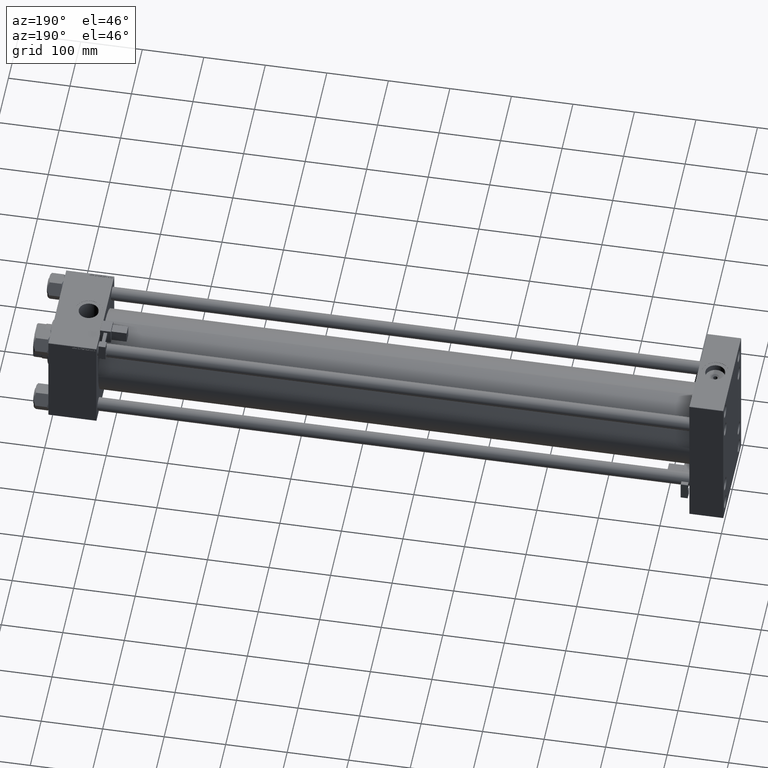
[diagram: clean part render]
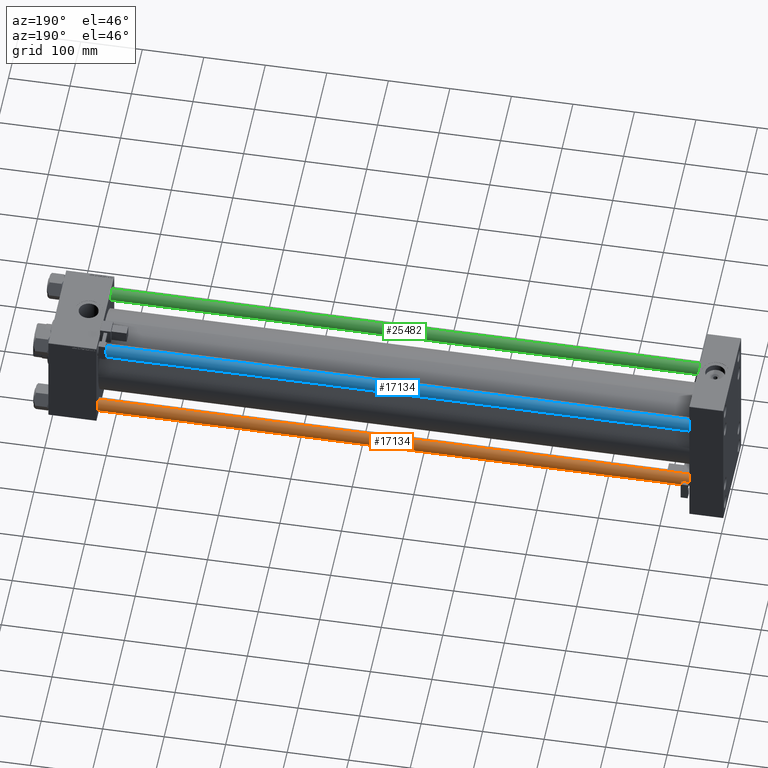
[diagram: same view with three faces highlighted in distinct colors, each labeled with its STEP entity id]
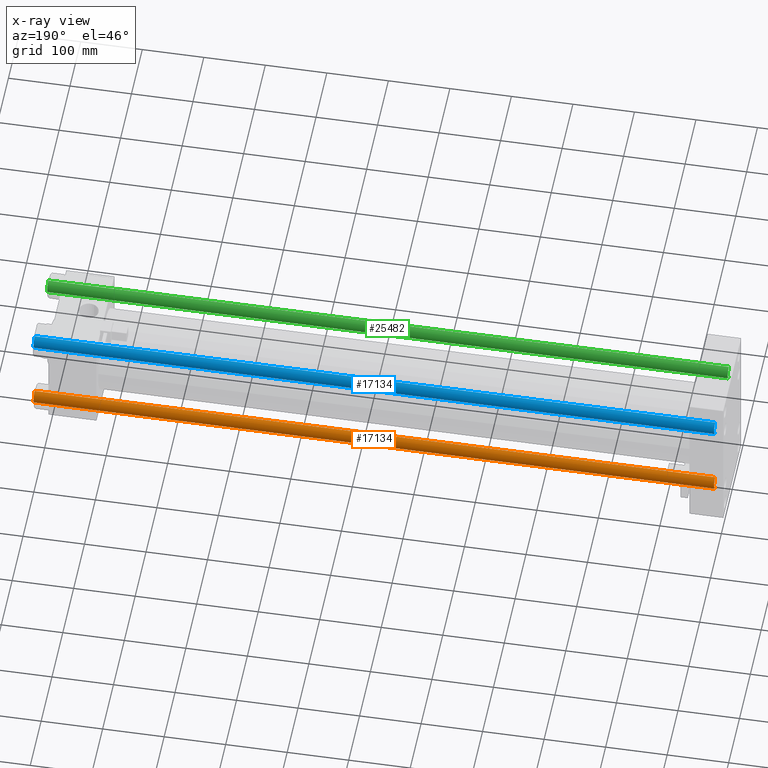
[diagram: x-ray of the same camera — body ghosted, the three highlighted faces saturated]
A machine part, auxiliary view with three faces highlighted in distinct colors.
The next image is the same camera in x-ray (body ghosted, the three faces saturated) — at least one of them is partly hidden behind the body in this view.
Their STEP definitions:

[orange] entity #17134 — the highlighted cylindrical surface (edge-blend (fillet) strip) has radius 11 mm, axis along (-1, 0, 0).
#1936 = LINE ( 'NONE', #14180, #21247 ) ;
#2006 = LINE ( 'NONE', #47049, #18837 ) ;
#2665 = AXIS2_PLACEMENT_3D ( 'NONE', #25410, #41418, #45431 ) ;
#3874 = VERTEX_POINT ( 'NONE', #18057 ) ;
#4763 = VERTEX_POINT ( 'NONE', #9291 ) ;
#5946 = CARTESIAN_POINT ( 'NONE',  ( 0.000000000000000000, 0.000000000000000000, 1107.000000000000000 ) ) ;
#9291 = CARTESIAN_POINT ( 'NONE',  ( -11.00000000000000000, 0.000000000000000000, 0.5000000000001669775 ) ) ;
#10186 = DIRECTION ( 'NONE',  ( -0.000000000000000000, -0.000000000000000000, -1.000000000000000000 ) ) ;
#10555 = EDGE_CURVE ( 'NONE', #40219, #4763, #2006, .T. ) ;
#10556 = DIRECTION ( 'NONE',  ( 0.000000000000000000, 0.000000000000000000, -1.000000000000000000 ) ) ;
#11285 = ORIENTED_EDGE ( 'NONE', *, *, #47826, .F. ) ;
#12098 = EDGE_LOOP ( 'NONE', ( #11285, #29632, #24367, #24265 ) ) ;
#14180 = CARTESIAN_POINT ( 'NONE',  ( 11.00000000000000000, 1.347111479062088405E-15, 1107.000000000000000 ) ) ;
#14769 = DIRECTION ( 'NONE',  ( -0.000000000000000000, -0.000000000000000000, -1.000000000000000000 ) ) ;
#14805 = DIRECTION ( 'NONE',  ( 1.000000000000000000, 0.000000000000000000, 0.000000000000000000 ) ) ;
#16754 = CARTESIAN_POINT ( 'NONE',  ( 11.00000000000000000, 1.347111479062088405E-15, 1106.500000000000000 ) ) ;
#17134 = ADVANCED_FACE ( 'NONE', ( #41701 ), #45965, .T. ) ;
#18057 = CARTESIAN_POINT ( 'NONE',  ( 11.00000000000000000, 1.347111479062088405E-15, 0.5000000000001669775 ) ) ;
#18837 = VECTOR ( 'NONE', #14769, 1000.000000000000000 ) ;
#21247 = VECTOR ( 'NONE', #10186, 1000.000000000000000 ) ;
#24265 = ORIENTED_EDGE ( 'NONE', *, *, #42897, .T. ) ;
#24367 = ORIENTED_EDGE ( 'NONE', *, *, #10555, .T. ) ;
#25410 = CARTESIAN_POINT ( 'NONE',  ( 0.000000000000000000, 0.000000000000000000, 0.5000000000001669775 ) ) ;
#26381 = VERTEX_POINT ( 'NONE', #16754 ) ;
#26481 = CIRCLE ( 'NONE', #2665, 11.00000000000000000 ) ;
#26490 = DIRECTION ( 'NONE',  ( -1.000000000000000000, 0.000000000000000000, 0.000000000000000000 ) ) ;
#29632 = ORIENTED_EDGE ( 'NONE', *, *, #50556, .T. ) ;
#34750 = DIRECTION ( 'NONE',  ( -0.000000000000000000, -0.000000000000000000, -1.000000000000000000 ) ) ;
#35010 = AXIS2_PLACEMENT_3D ( 'NONE', #47086, #10556, #14805 ) ;
#39056 = CARTESIAN_POINT ( 'NONE',  ( -11.00000000000000000, 0.000000000000000000, 1106.500000000000000 ) ) ;
#40219 = VERTEX_POINT ( 'NONE', #39056 ) ;
#41418 = DIRECTION ( 'NONE',  ( -0.000000000000000000, -0.000000000000000000, 1.000000000000000000 ) ) ;
#41701 = FACE_OUTER_BOUND ( 'NONE', #12098, .T. ) ;
#42897 = EDGE_CURVE ( 'NONE', #4763, #3874, #26481, .T. ) ;
#45431 = DIRECTION ( 'NONE',  ( 1.000000000000000000, 0.000000000000000000, 0.000000000000000000 ) ) ;
#45965 = CYLINDRICAL_SURFACE ( 'NONE', #46347, 11.00000000000000000 ) ;
#46347 = AXIS2_PLACEMENT_3D ( 'NONE', #5946, #34750, #26490 ) ;
#47049 = CARTESIAN_POINT ( 'NONE',  ( -11.00000000000000000, 0.000000000000000000, 1107.000000000000000 ) ) ;
#47086 = CARTESIAN_POINT ( 'NONE',  ( 0.000000000000000000, 0.000000000000000000, 1106.500000000000000 ) ) ;
#47826 = EDGE_CURVE ( 'NONE', #26381, #3874, #1936, .T. ) ;
#50359 = CIRCLE ( 'NONE', #35010, 11.00000000000000000 ) ;
#50556 = EDGE_CURVE ( 'NONE', #26381, #40219, #50359, .T. ) ;

[blue] entity #17134 — the highlighted cylindrical surface (edge-blend (fillet) strip) has radius 11 mm, axis along (1, 0, 0).
#1936 = LINE ( 'NONE', #14180, #21247 ) ;
#2006 = LINE ( 'NONE', #47049, #18837 ) ;
#2665 = AXIS2_PLACEMENT_3D ( 'NONE', #25410, #41418, #45431 ) ;
#3874 = VERTEX_POINT ( 'NONE', #18057 ) ;
#4763 = VERTEX_POINT ( 'NONE', #9291 ) ;
#5946 = CARTESIAN_POINT ( 'NONE',  ( 0.000000000000000000, 0.000000000000000000, 1107.000000000000000 ) ) ;
#9291 = CARTESIAN_POINT ( 'NONE',  ( -11.00000000000000000, 0.000000000000000000, 0.5000000000001669775 ) ) ;
#10186 = DIRECTION ( 'NONE',  ( -0.000000000000000000, -0.000000000000000000, -1.000000000000000000 ) ) ;
#10555 = EDGE_CURVE ( 'NONE', #40219, #4763, #2006, .T. ) ;
#10556 = DIRECTION ( 'NONE',  ( 0.000000000000000000, 0.000000000000000000, -1.000000000000000000 ) ) ;
#11285 = ORIENTED_EDGE ( 'NONE', *, *, #47826, .F. ) ;
#12098 = EDGE_LOOP ( 'NONE', ( #11285, #29632, #24367, #24265 ) ) ;
#14180 = CARTESIAN_POINT ( 'NONE',  ( 11.00000000000000000, 1.347111479062088405E-15, 1107.000000000000000 ) ) ;
#14769 = DIRECTION ( 'NONE',  ( -0.000000000000000000, -0.000000000000000000, -1.000000000000000000 ) ) ;
#14805 = DIRECTION ( 'NONE',  ( 1.000000000000000000, 0.000000000000000000, 0.000000000000000000 ) ) ;
#16754 = CARTESIAN_POINT ( 'NONE',  ( 11.00000000000000000, 1.347111479062088405E-15, 1106.500000000000000 ) ) ;
#17134 = ADVANCED_FACE ( 'NONE', ( #41701 ), #45965, .T. ) ;
#18057 = CARTESIAN_POINT ( 'NONE',  ( 11.00000000000000000, 1.347111479062088405E-15, 0.5000000000001669775 ) ) ;
#18837 = VECTOR ( 'NONE', #14769, 1000.000000000000000 ) ;
#21247 = VECTOR ( 'NONE', #10186, 1000.000000000000000 ) ;
#24265 = ORIENTED_EDGE ( 'NONE', *, *, #42897, .T. ) ;
#24367 = ORIENTED_EDGE ( 'NONE', *, *, #10555, .T. ) ;
#25410 = CARTESIAN_POINT ( 'NONE',  ( 0.000000000000000000, 0.000000000000000000, 0.5000000000001669775 ) ) ;
#26381 = VERTEX_POINT ( 'NONE', #16754 ) ;
#26481 = CIRCLE ( 'NONE', #2665, 11.00000000000000000 ) ;
#26490 = DIRECTION ( 'NONE',  ( -1.000000000000000000, 0.000000000000000000, 0.000000000000000000 ) ) ;
#29632 = ORIENTED_EDGE ( 'NONE', *, *, #50556, .T. ) ;
#34750 = DIRECTION ( 'NONE',  ( -0.000000000000000000, -0.000000000000000000, -1.000000000000000000 ) ) ;
#35010 = AXIS2_PLACEMENT_3D ( 'NONE', #47086, #10556, #14805 ) ;
#39056 = CARTESIAN_POINT ( 'NONE',  ( -11.00000000000000000, 0.000000000000000000, 1106.500000000000000 ) ) ;
#40219 = VERTEX_POINT ( 'NONE', #39056 ) ;
#41418 = DIRECTION ( 'NONE',  ( -0.000000000000000000, -0.000000000000000000, 1.000000000000000000 ) ) ;
#41701 = FACE_OUTER_BOUND ( 'NONE', #12098, .T. ) ;
#42897 = EDGE_CURVE ( 'NONE', #4763, #3874, #26481, .T. ) ;
#45431 = DIRECTION ( 'NONE',  ( 1.000000000000000000, 0.000000000000000000, 0.000000000000000000 ) ) ;
#45965 = CYLINDRICAL_SURFACE ( 'NONE', #46347, 11.00000000000000000 ) ;
#46347 = AXIS2_PLACEMENT_3D ( 'NONE', #5946, #34750, #26490 ) ;
#47049 = CARTESIAN_POINT ( 'NONE',  ( -11.00000000000000000, 0.000000000000000000, 1107.000000000000000 ) ) ;
#47086 = CARTESIAN_POINT ( 'NONE',  ( 0.000000000000000000, 0.000000000000000000, 1106.500000000000000 ) ) ;
#47826 = EDGE_CURVE ( 'NONE', #26381, #3874, #1936, .T. ) ;
#50359 = CIRCLE ( 'NONE', #35010, 11.00000000000000000 ) ;
#50556 = EDGE_CURVE ( 'NONE', #26381, #40219, #50359, .T. ) ;

[green] entity #25482 — the highlighted cylindrical surface (edge-blend (fillet) strip) has radius 11 mm, axis along (-1, 0, -0).
#1936 = LINE ( 'NONE', #14180, #21247 ) ;
#2006 = LINE ( 'NONE', #47049, #18837 ) ;
#3874 = VERTEX_POINT ( 'NONE', #18057 ) ;
#4763 = VERTEX_POINT ( 'NONE', #9291 ) ;
#9291 = CARTESIAN_POINT ( 'NONE',  ( -11.00000000000000000, 0.000000000000000000, 0.5000000000001669775 ) ) ;
#10186 = DIRECTION ( 'NONE',  ( -0.000000000000000000, -0.000000000000000000, -1.000000000000000000 ) ) ;
#10555 = EDGE_CURVE ( 'NONE', #40219, #4763, #2006, .T. ) ;
#10970 = ORIENTED_EDGE ( 'NONE', *, *, #10555, .F. ) ;
#13729 = CIRCLE ( 'NONE', #32503, 11.00000000000000000 ) ;
#13957 = CARTESIAN_POINT ( 'NONE',  ( 0.000000000000000000, 0.000000000000000000, 0.5000000000001669775 ) ) ;
#14180 = CARTESIAN_POINT ( 'NONE',  ( 11.00000000000000000, 1.347111479062088405E-15, 1107.000000000000000 ) ) ;
#14769 = DIRECTION ( 'NONE',  ( -0.000000000000000000, -0.000000000000000000, -1.000000000000000000 ) ) ;
#15227 = CARTESIAN_POINT ( 'NONE',  ( 0.000000000000000000, 0.000000000000000000, 1106.500000000000000 ) ) ;
#15759 = EDGE_CURVE ( 'NONE', #3874, #4763, #34398, .T. ) ;
#16486 = DIRECTION ( 'NONE',  ( -0.000000000000000000, -0.000000000000000000, -1.000000000000000000 ) ) ;
#16754 = CARTESIAN_POINT ( 'NONE',  ( 11.00000000000000000, 1.347111479062088405E-15, 1106.500000000000000 ) ) ;
#18057 = CARTESIAN_POINT ( 'NONE',  ( 11.00000000000000000, 1.347111479062088405E-15, 0.5000000000001669775 ) ) ;
#18837 = VECTOR ( 'NONE', #14769, 1000.000000000000000 ) ;
#21247 = VECTOR ( 'NONE', #10186, 1000.000000000000000 ) ;
#21282 = FACE_OUTER_BOUND ( 'NONE', #21745, .T. ) ;
#21745 = EDGE_LOOP ( 'NONE', ( #40720, #50989, #50859, #10970 ) ) ;
#23297 = AXIS2_PLACEMENT_3D ( 'NONE', #13957, #41966, #50501 ) ;
#24502 = CYLINDRICAL_SURFACE ( 'NONE', #29387, 11.00000000000000000 ) ;
#25301 = DIRECTION ( 'NONE',  ( -1.000000000000000000, 0.000000000000000000, 0.000000000000000000 ) ) ;
#25482 = ADVANCED_FACE ( 'NONE', ( #21282 ), #24502, .T. ) ;
#26381 = VERTEX_POINT ( 'NONE', #16754 ) ;
#29387 = AXIS2_PLACEMENT_3D ( 'NONE', #32521, #16486, #25301 ) ;
#32503 = AXIS2_PLACEMENT_3D ( 'NONE', #15227, #47517, #43524 ) ;
#32521 = CARTESIAN_POINT ( 'NONE',  ( 0.000000000000000000, 0.000000000000000000, 1107.000000000000000 ) ) ;
#34398 = CIRCLE ( 'NONE', #23297, 11.00000000000000000 ) ;
#39056 = CARTESIAN_POINT ( 'NONE',  ( -11.00000000000000000, 0.000000000000000000, 1106.500000000000000 ) ) ;
#40219 = VERTEX_POINT ( 'NONE', #39056 ) ;
#40720 = ORIENTED_EDGE ( 'NONE', *, *, #43068, .T. ) ;
#41966 = DIRECTION ( 'NONE',  ( -0.000000000000000000, -0.000000000000000000, 1.000000000000000000 ) ) ;
#43068 = EDGE_CURVE ( 'NONE', #40219, #26381, #13729, .T. ) ;
#43524 = DIRECTION ( 'NONE',  ( 1.000000000000000000, 0.000000000000000000, 0.000000000000000000 ) ) ;
#47049 = CARTESIAN_POINT ( 'NONE',  ( -11.00000000000000000, 0.000000000000000000, 1107.000000000000000 ) ) ;
#47517 = DIRECTION ( 'NONE',  ( 0.000000000000000000, 0.000000000000000000, -1.000000000000000000 ) ) ;
#47826 = EDGE_CURVE ( 'NONE', #26381, #3874, #1936, .T. ) ;
#50501 = DIRECTION ( 'NONE',  ( 1.000000000000000000, 0.000000000000000000, 0.000000000000000000 ) ) ;
#50859 = ORIENTED_EDGE ( 'NONE', *, *, #15759, .T. ) ;
#50989 = ORIENTED_EDGE ( 'NONE', *, *, #47826, .T. ) ;